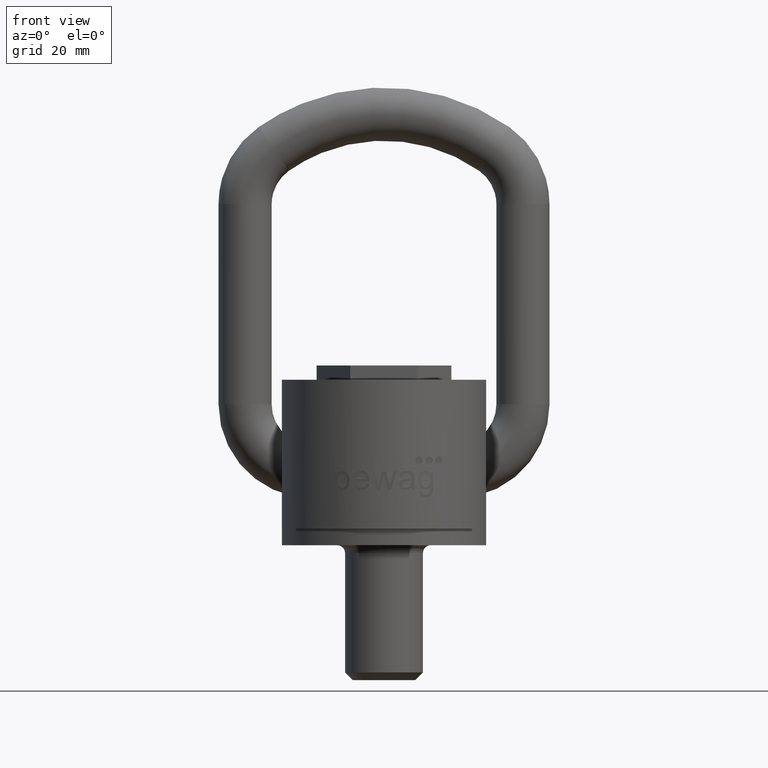
[diagram: clean part render]
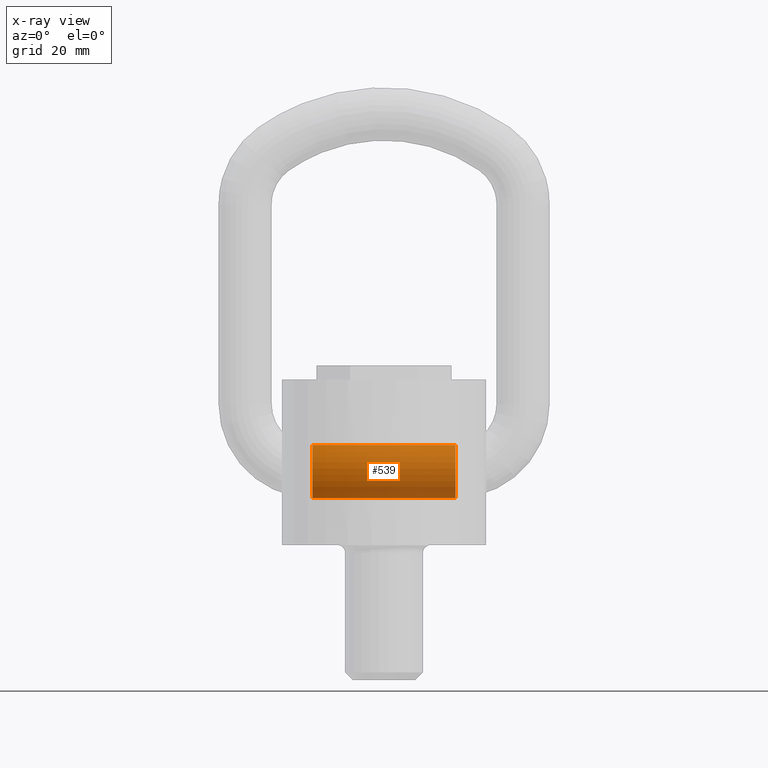
[diagram: x-ray — body ghosted, one internal face saturated and labeled with its STEP entity id]
A machine part, front view, then the same camera in x-ray: the body is ghosted and one INTERNAL B-rep face — a face not visible from any outside direction — is saturated and labeled: STEP entity #539.
In plain terms, the highlighted cylindrical surface (bore or boss wall) has radius 6.5 mm, axis along (1, 0, 0).
Its self-contained STEP definition (entity closure, byte-faithful):
#539=ADVANCED_FACE('',(#618,#619),#561,.T.);
#561=CYLINDRICAL_SURFACE('',#2597,6.5);
#618=FACE_BOUND('',#781,.T.);
#619=FACE_BOUND('',#782,.T.);
#781=EDGE_LOOP('',(#1753));
#782=EDGE_LOOP('',(#1754));
#1133=CIRCLE('',#2593,6.5);
#1135=CIRCLE('',#2596,6.5);
#1753=ORIENTED_EDGE('',*,*,#2288,.T.);
#1754=ORIENTED_EDGE('',*,*,#2286,.F.);
#1973=VERTEX_POINT('',#5276);
#1975=VERTEX_POINT('',#5281);
#2286=EDGE_CURVE('',#1973,#1973,#1133,.T.);
#2288=EDGE_CURVE('',#1975,#1975,#1135,.T.);
#2593=AXIS2_PLACEMENT_3D('',#5275,#3033,#3034);
#2596=AXIS2_PLACEMENT_3D('',#5280,#3039,#3040);
#2597=AXIS2_PLACEMENT_3D('',#5282,#3041,#3042);
#3033=DIRECTION('',(1.,0.,-1.3379888182763E-15));
#3034=DIRECTION('',(-1.60128320859398E-15,0.,-1.));
#3039=DIRECTION('',(1.,0.,-1.3379888182763E-15));
#3040=DIRECTION('',(-1.60128320859398E-15,0.,-1.));
#3041=DIRECTION('',(1.,0.,0.));
#3042=DIRECTION('',(0.,0.,-1.));
#5275=CARTESIAN_POINT('',(17.5,20.,14.));
#5276=CARTESIAN_POINT('',(17.5,20.,7.49999999999999));
#5280=CARTESIAN_POINT('',(-17.5,20.,14.));
#5281=CARTESIAN_POINT('',(-17.5,20.,7.49999999999999));
#5282=CARTESIAN_POINT('',(-17.5,20.,14.));